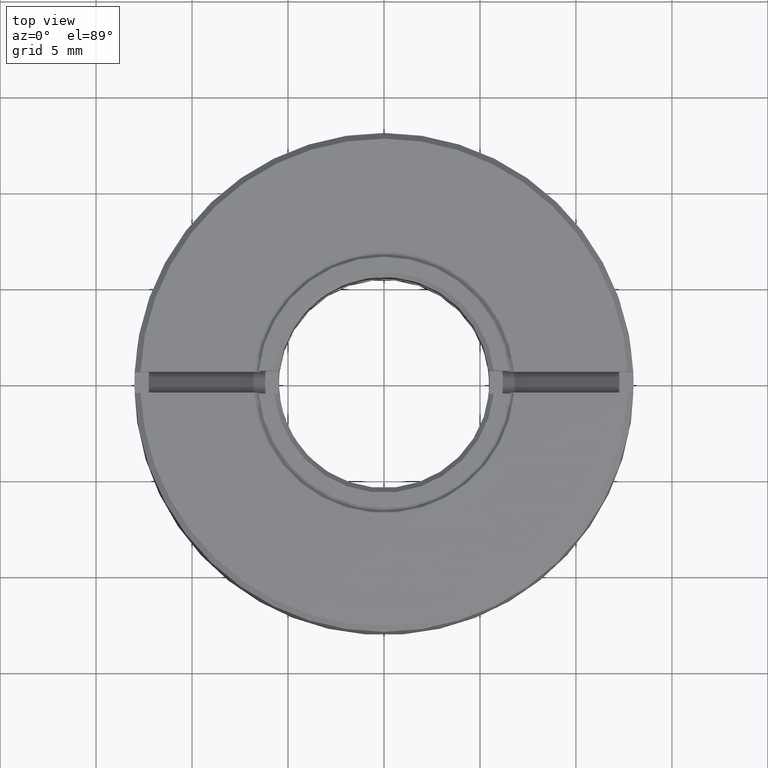
[diagram: clean part render]
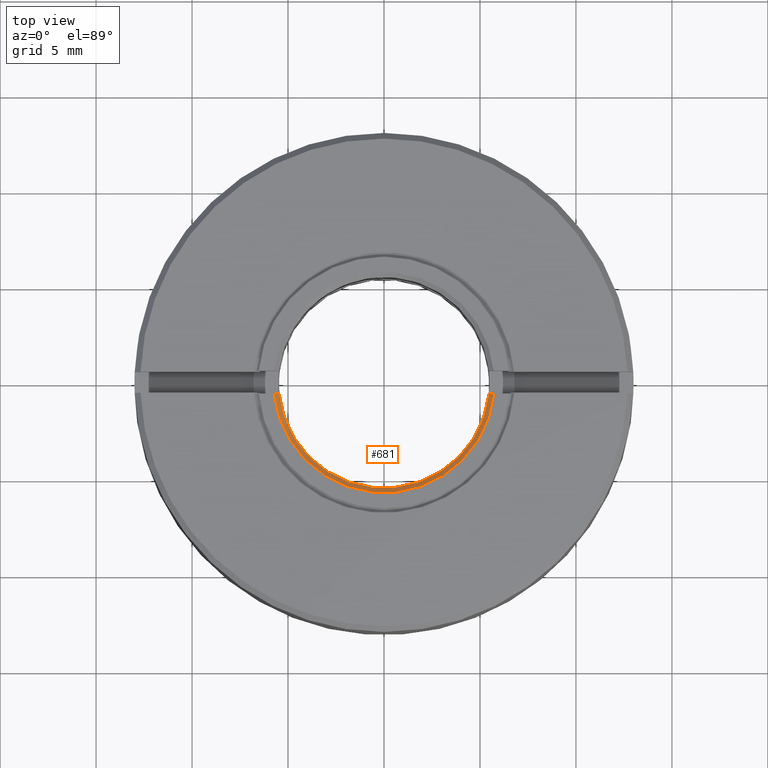
[diagram: same view with one face highlighted and labeled with its STEP entity id]
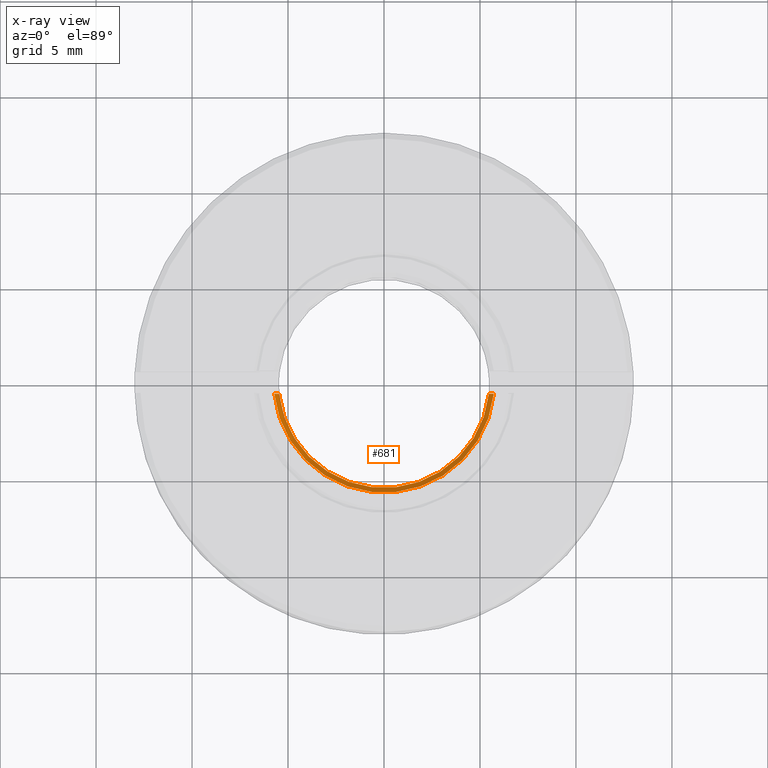
[diagram: x-ray of the same camera — body ghosted, the highlighted face saturated]
A machine part, top view. The second image highlights one B-rep face of the part: STEP entity #681.
The next image is the same camera in x-ray: the body ghosted, the highlighted face saturated — about 0% of this face is hidden behind the body in this view.
In plain terms, the highlighted conical surface has half-angle 45 deg.
Its self-contained STEP definition (entity closure, byte-faithful):
#25 = AXIS2_PLACEMENT_3D ( 'NONE', #829, #1321, #1195 ) ;
#32 = B_SPLINE_CURVE_WITH_KNOTS ( 'NONE', 3,
 ( #1223, #622, #1592, #954 ),
 .UNSPECIFIED., .F., .F.,
 ( 4, 4 ),
 ( 3.239557193404537339E-15, 0.0003545696809824114650 ),
 .UNSPECIFIED. ) ;
#138 = CARTESIAN_POINT ( 'NONE',  ( 0.000000000000000000, 0.000000000000000000, 4.750000000062755134 ) ) ;
#140 = CARTESIAN_POINT ( 'NONE',  ( -5.467174773151968203, -0.5999999999999998668, 4.750000000039488413 ) ) ;
#160 = CARTESIAN_POINT ( 'NONE',  ( 5.467174773156500578, -0.5999999999999998668, 4.750000000043995030 ) ) ;
#163 = B_SPLINE_CURVE_WITH_KNOTS ( 'NONE', 3,
 ( #788, #178, #795, #1400 ),
 .UNSPECIFIED., .F., .F.,
 ( 4, 4 ),
 ( 1.382239098174611047E-14, 0.0003545696809589574615 ),
 .UNSPECIFIED. ) ;
#178 = CARTESIAN_POINT ( 'NONE',  ( 5.550997410201504501, -0.5999999999999998668, 4.833322364893104961 ) ) ;
#215 = EDGE_CURVE ( 'NONE', #1152, #442, #840, .T. ) ;
#219 = DIRECTION ( 'NONE',  ( 1.000000000000000000, 0.000000000000000000, 0.000000000000000000 ) ) ;
#442 = VERTEX_POINT ( 'NONE', #537 ) ;
#448 = VERTEX_POINT ( 'NONE', #160 ) ;
#471 = FACE_OUTER_BOUND ( 'NONE', #858, .T. ) ;
#528 = EDGE_CURVE ( 'NONE', #448, #1152, #163, .T. ) ;
#537 = CARTESIAN_POINT ( 'NONE',  ( -5.718609970943115073, -0.5999999999999998668, 5.000000000002284395 ) ) ;
#619 = DIRECTION ( 'NONE',  ( 0.000000000000000000, 0.000000000000000000, 1.000000000000000000 ) ) ;
#622 = CARTESIAN_POINT ( 'NONE',  ( -5.634808667376272062, -0.5999999999999998668, 4.916656179105404867 ) ) ;
#637 = EDGE_CURVE ( 'NONE', #442, #846, #32, .T. ) ;
#645 = AXIS2_PLACEMENT_3D ( 'NONE', #933, #1556, #219 ) ;
#681 = ADVANCED_FACE ( 'NONE', ( #471 ), #735, .F. ) ;
#708 = CARTESIAN_POINT ( 'NONE',  ( 5.718609970943115073, -0.5999999999999998668, 5.000000000002284395 ) ) ;
#716 = ORIENTED_EDGE ( 'NONE', *, *, #637, .F. ) ;
#735 = CONICAL_SURFACE ( 'NONE', #25, 5.750000000034560799, 0.7853981633974482790 ) ;
#788 = CARTESIAN_POINT ( 'NONE',  ( 5.467174773156500578, -0.5999999999999998668, 4.750000000043995030 ) ) ;
#795 = CARTESIAN_POINT ( 'NONE',  ( 5.634808667376271174, -0.5999999999999998668, 4.916656179105403979 ) ) ;
#829 = CARTESIAN_POINT ( 'NONE',  ( 0.000000000000000000, 0.000000000000000000, 5.000000000056843419 ) ) ;
#840 = CIRCLE ( 'NONE', #645, 5.749999999977717380 ) ;
#846 = VERTEX_POINT ( 'NONE', #140 ) ;
#858 = EDGE_LOOP ( 'NONE', ( #1342, #1113, #1338, #716 ) ) ;
#891 = DIRECTION ( 'NONE',  ( 1.000000000000000000, 0.000000000000000000, 0.000000000000000000 ) ) ;
#933 = CARTESIAN_POINT ( 'NONE',  ( 0.000000000000000000, 0.000000000000000000, 5.000000000000000000 ) ) ;
#954 = CARTESIAN_POINT ( 'NONE',  ( -5.467174773151968203, -0.5999999999999998668, 4.750000000039488413 ) ) ;
#991 = CIRCLE ( 'NONE', #1348, 5.500000000040472514 ) ;
#1113 = ORIENTED_EDGE ( 'NONE', *, *, #528, .F. ) ;
#1152 = VERTEX_POINT ( 'NONE', #708 ) ;
#1195 = DIRECTION ( 'NONE',  ( 1.000000000000000000, 0.000000000000000000, 0.000000000000000000 ) ) ;
#1223 = CARTESIAN_POINT ( 'NONE',  ( -5.718609970943115073, -0.5999999999999998668, 5.000000000002284395 ) ) ;
#1270 = EDGE_CURVE ( 'NONE', #846, #448, #991, .T. ) ;
#1321 = DIRECTION ( 'NONE',  ( 0.000000000000000000, -0.000000000000000000, 1.000000000000000000 ) ) ;
#1338 = ORIENTED_EDGE ( 'NONE', *, *, #1270, .F. ) ;
#1342 = ORIENTED_EDGE ( 'NONE', *, *, #215, .F. ) ;
#1348 = AXIS2_PLACEMENT_3D ( 'NONE', #138, #619, #891 ) ;
#1400 = CARTESIAN_POINT ( 'NONE',  ( 5.718609970943115073, -0.5999999999999998668, 5.000000000002284395 ) ) ;
#1556 = DIRECTION ( 'NONE',  ( -0.000000000000000000, 0.000000000000000000, -1.000000000000000000 ) ) ;
#1592 = CARTESIAN_POINT ( 'NONE',  ( -5.550997410201506277, -0.5999999999999998668, 4.833322364893106737 ) ) ;